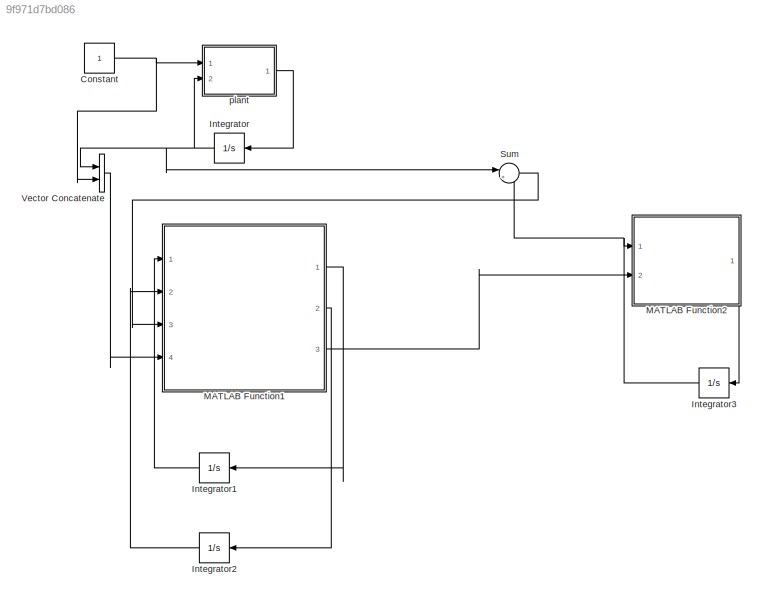
MODEL slx_9f971d7bd086
KIND model
CONFIG AbsTol = auto
CONFIG EnableMultiTasking = off
CONFIG FixedStep = auto
CONFIG MaxStep = auto
CONFIG MinStep = auto
CONFIG RelTol = 1e-3
CONFIG SampleTimeConstraint = Unconstrained
CONFIG Solver = VariableStepAuto
CONFIG SolverName = VariableStepAuto
CONFIG StartTime = 0.0
CONFIG StopTime = 10.0
BLOCK [Constant] Constant
BLOCK [Integrator] Integrator
  InitialCondition = zeros(2,1)
  Ports = [1, 1]
BLOCK [Integrator] Integrator1
  InitialCondition = zeros(2,2)
  Ports = [1, 1]
BLOCK [Integrator] Integrator2
  InitialCondition = zeros(2,2)
  Ports = [1, 1]
BLOCK [Integrator] Integrator3
  InitialCondition = zeros(2,1)
  Ports = [1, 1]
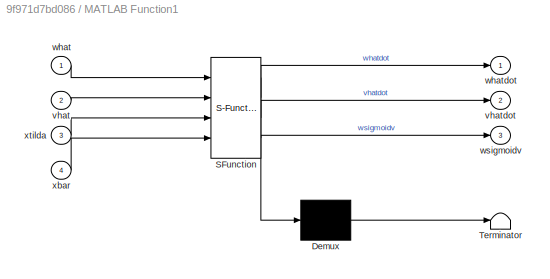
BLOCK [SubSystem] MATLAB Function1
  ErrorFcn = Stateflow.Translate.translate
  PermitHierarchicalResolution = ExplicitOnly
  Ports = [4, 3]
  RequestExecContextInheritance = off
  SFBlockType = MATLAB Function
  TreatAsAtomicUnit = on
BLOCK [Demux] MATLAB Function1/ Demux 
  Outputs = 1
  Ports = [1, 1]
BLOCK [S-Function] MATLAB Function1/ SFunction 
  EnableBusSupport = on
  FunctionName = sf_sfun
  PortCounts = [4 4]
  Ports = [4, 4]
  SFcnIsStateOwnerBlock = off
  SFunctionDeploymentMode = off
  Tag = Stateflow S-Function 1
BLOCK [Terminator] MATLAB Function1/ Terminator 
BLOCK [Inport] MATLAB Function1/vhat
  IconDisplay = Port number
  Port = 2
BLOCK [Outport] MATLAB Function1/vhatdot
  IconDisplay = Port number
  Port = 2
BLOCK [Inport] MATLAB Function1/what
  IconDisplay = Port number
BLOCK [Outport] MATLAB Function1/whatdot
  IconDisplay = Port number
BLOCK [Outport] MATLAB Function1/wsigmoidv
  IconDisplay = Port number
  Port = 3
BLOCK [Inport] MATLAB Function1/xbar
  IconDisplay = Port number
  Port = 4
BLOCK [Inport] MATLAB Function1/xtilda
  IconDisplay = Port number
  Port = 3
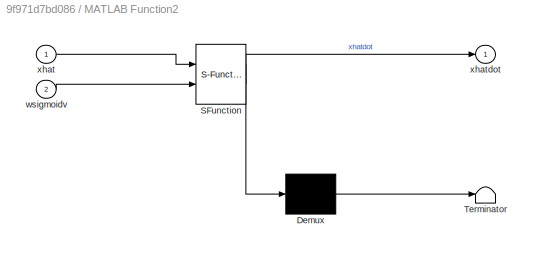
BLOCK [SubSystem] MATLAB Function2
  ErrorFcn = Stateflow.Translate.translate
  PermitHierarchicalResolution = ExplicitOnly
  Ports = [2, 1]
  RequestExecContextInheritance = off
  SFBlockType = MATLAB Function
  TreatAsAtomicUnit = on
BLOCK [Demux] MATLAB Function2/ Demux 
  Outputs = 1
  Ports = [1, 1]
BLOCK [S-Function] MATLAB Function2/ SFunction 
  EnableBusSupport = on
  FunctionName = sf_sfun
  PortCounts = [2 2]
  Ports = [2, 2]
  SFcnIsStateOwnerBlock = off
  SFunctionDeploymentMode = off
  Tag = Stateflow S-Function 3
BLOCK [Terminator] MATLAB Function2/ Terminator 
BLOCK [Inport] MATLAB Function2/wsigmoidv
  IconDisplay = Port number
  Port = 2
BLOCK [Inport] MATLAB Function2/xhat
  IconDisplay = Port number
BLOCK [Outport] MATLAB Function2/xhatdot
  IconDisplay = Port number
BLOCK [Sum] Sum
  IconShape = round
  InputSameDT = off
  Inputs = |++
  OutDataTypeStr = Inherit: Inherit via internal rule
  Ports = [2, 1]
  SaturateOnIntegerOverflow = off
BLOCK [Concatenate] Vector Concatenate
  Ports = [2, 1]
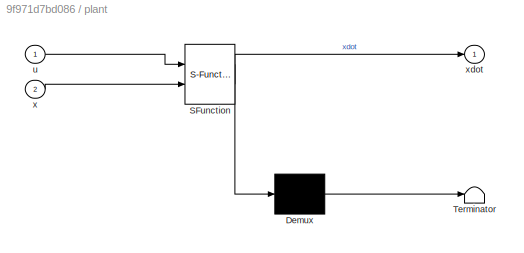
BLOCK [SubSystem] plant
  ErrorFcn = Stateflow.Translate.translate
  PermitHierarchicalResolution = ExplicitOnly
  Ports = [2, 1]
  RequestExecContextInheritance = off
  SFBlockType = MATLAB Function
  TreatAsAtomicUnit = on
BLOCK [Demux] plant/ Demux 
  Outputs = 1
  Ports = [1, 1]
BLOCK [S-Function] plant/ SFunction 
  EnableBusSupport = on
  FunctionName = sf_sfun
  PortCounts = [2 2]
  Ports = [2, 2]
  SFcnIsStateOwnerBlock = off
  SFunctionDeploymentMode = off
  Tag = Stateflow S-Function 2
BLOCK [Terminator] plant/ Terminator 
BLOCK [Inport] plant/u
  IconDisplay = Port number
BLOCK [Inport] plant/x
  IconDisplay = Port number
  Port = 2
BLOCK [Outport] plant/xdot
  IconDisplay = Port number
NET Constant:1 -> Vector Concatenate:2, plant:1
LINE Integrator1:1 -> MATLAB Function1:1
LINE Integrator2:1 -> MATLAB Function1:2
NET Integrator3:1 -> MATLAB Function2:1, Sum:2
NET Integrator:1 -> Sum:1, Vector Concatenate:1, plant:2
LINE MATLAB Function1:1 -> Integrator1:1
LINE MATLAB Function1:2 -> Integrator2:1
LINE MATLAB Function1:3 -> MATLAB Function2:2
LINE MATLAB Function2:1 -> Integrator3:1
LINE Sum:1 -> MATLAB Function1:3
LINE Vector Concatenate:1 -> MATLAB Function1:4
LINE plant:1 -> Integrator:1
note: NET lines group one-source signal fan-out (src -> all destinations, sorted); 1:1 wires keep LINE
CHART MATLAB Function1 states=1 transitions=1
  STATE_LABEL 'eML_blk_kernel()'
  STATE_LABEL 'SCRIPT:\nfunction [whatdot,vhatdot,wsigmoidv] = fcn(what,vhat,xtilda,xbar)\n hidden_layer = 2;\n lr1 = 0.1;\n lr2 = 0.1;\n sigmoidvx=zeros(2,1);\n sigmoiddot=zeros(2,1);\n whatdot = zeros(2,2);\n vhatdot = zeros(2,2);\n wsigmoidv = zeros(2,1);\n A = -2*eye(2)\n result = vhat*xbar;\n for i=1:2\n     sigmoidvx(i)=sigmoid(result(i))\n end\n sigmoidvxT = transpose(sigmoidvx);\n xtildaT = transpose(xtilda)\n AI = inv(A...<+282ch>'
CHART plant states=1 transitions=1
  STATE_LABEL 'eML_blk_kernel()'
  STATE_LABEL 'SCRIPT:\nfunction xdot = fcn(u,x)\nxdot=zeros(2,1)\nA = [-50,0;1,0];\nB = [1;0];\nxdot = A*x+B*u;\nend'
CHART MATLAB Function2 states=1 transitions=1
  STATE_LABEL 'eML_blk_kernel()'
  STATE_LABEL 'SCRIPT:\nfunction xhatdot = fcn(xhat,wsigmoidv)\nA=-2*eye(2)\nxhatdot=A*xhat+wsigmoidv ;\nend'
